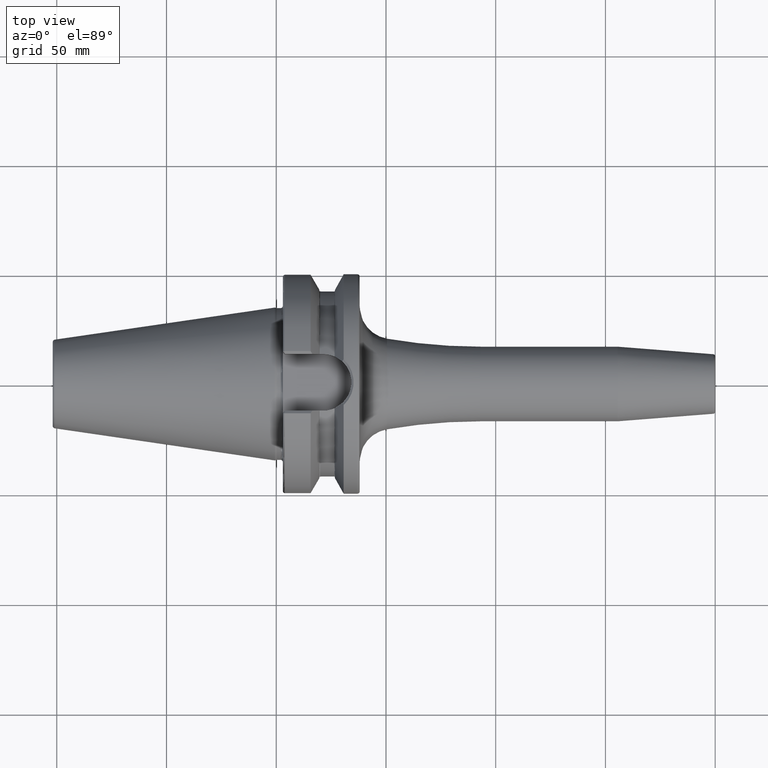
[diagram: clean part render]
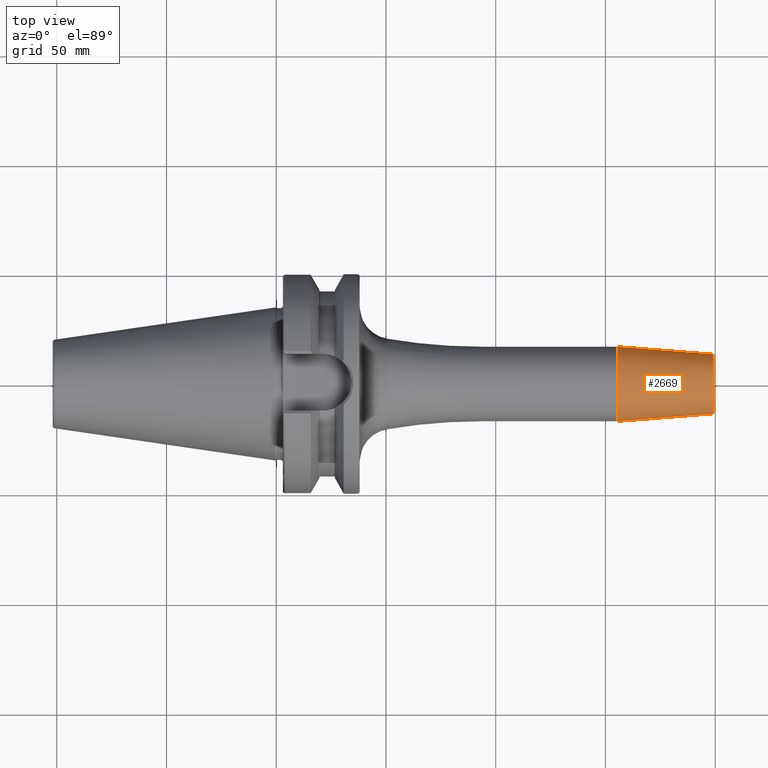
[diagram: same view with one face highlighted and labeled with its STEP entity id]
A machine part, top view. The second image highlights one B-rep face of the part: STEP entity #2669.
In plain terms, the highlighted conical surface has half-angle 4.5 deg.
Its self-contained STEP definition (entity closure, byte-faithful):
#897=CARTESIAN_POINT('',(1.555282834234E2,0.E0,0.E0));
#898=DIRECTION('',(1.E0,0.E0,0.E0));
#899=DIRECTION('',(0.E0,1.E0,0.E0));
#900=AXIS2_PLACEMENT_3D('',#897,#898,#899);
#902=CARTESIAN_POINT('',(1.990784590957E2,0.E0,0.E0));
#903=DIRECTION('',(-1.E0,0.E0,0.E0));
#904=DIRECTION('',(0.E0,-1.E0,0.E0));
#905=AXIS2_PLACEMENT_3D('',#902,#903,#904);
#922=DIRECTION('',(-9.969173337331E-1,7.845909572785E-2,6.257929142752E-14));
#923=VECTOR('',#922,4.368484145948E1);
#924=CARTESIAN_POINT('',(1.990784590957E2,1.357252684207E1,
-2.731684525099E-12));
#925=LINE('',#924,#923);
#926=DIRECTION('',(-9.969173337331E-1,-7.845909572785E-2,-6.256977923119E-14));
#927=VECTOR('',#926,4.368484145948E1);
#928=CARTESIAN_POINT('',(1.990784590957E2,-1.357252684207E1,
2.731268986310E-12));
#929=LINE('',#928,#927);
#1411=CARTESIAN_POINT('',(1.555282834234E2,1.7E1,0.E0));
#1412=CARTESIAN_POINT('',(1.555282834234E2,-1.7E1,0.E0));
#1413=VERTEX_POINT('',#1411);
#1414=VERTEX_POINT('',#1412);
#1423=CARTESIAN_POINT('',(1.990784590957E2,1.357252684207E1,0.E0));
#1424=CARTESIAN_POINT('',(1.990784590957E2,-1.357252684207E1,0.E0));
#1425=VERTEX_POINT('',#1423);
#1426=VERTEX_POINT('',#1424);
#2655=CARTESIAN_POINT('',(1.773033712596E2,0.E0,0.E0));
#2656=DIRECTION('',(-1.E0,0.E0,0.E0));
#2657=DIRECTION('',(0.E0,1.E0,0.E0));
#2658=AXIS2_PLACEMENT_3D('',#2655,#2656,#2657);
#2659=CONICAL_SURFACE('',#2658,1.528626342104E1,4.5E0);
#2661=ORIENTED_EDGE('',*,*,#2660,.F.);
#2663=ORIENTED_EDGE('',*,*,#2662,.T.);
#2664=ORIENTED_EDGE('',*,*,#2649,.F.);
#2666=ORIENTED_EDGE('',*,*,#2665,.F.);
#2667=EDGE_LOOP('',(#2661,#2663,#2664,#2666));
#2668=FACE_OUTER_BOUND('',#2667,.F.);
#2669=ADVANCED_FACE('',(#2668),#2659,.T.);
#901=CIRCLE('',#900,1.7E1);
#906=CIRCLE('',#905,1.357252684207E1);
#2649=EDGE_CURVE('',#1413,#1414,#901,.T.);
#2660=EDGE_CURVE('',#1426,#1425,#906,.T.);
#2662=EDGE_CURVE('',#1426,#1414,#929,.T.);
#2665=EDGE_CURVE('',#1425,#1413,#925,.T.);